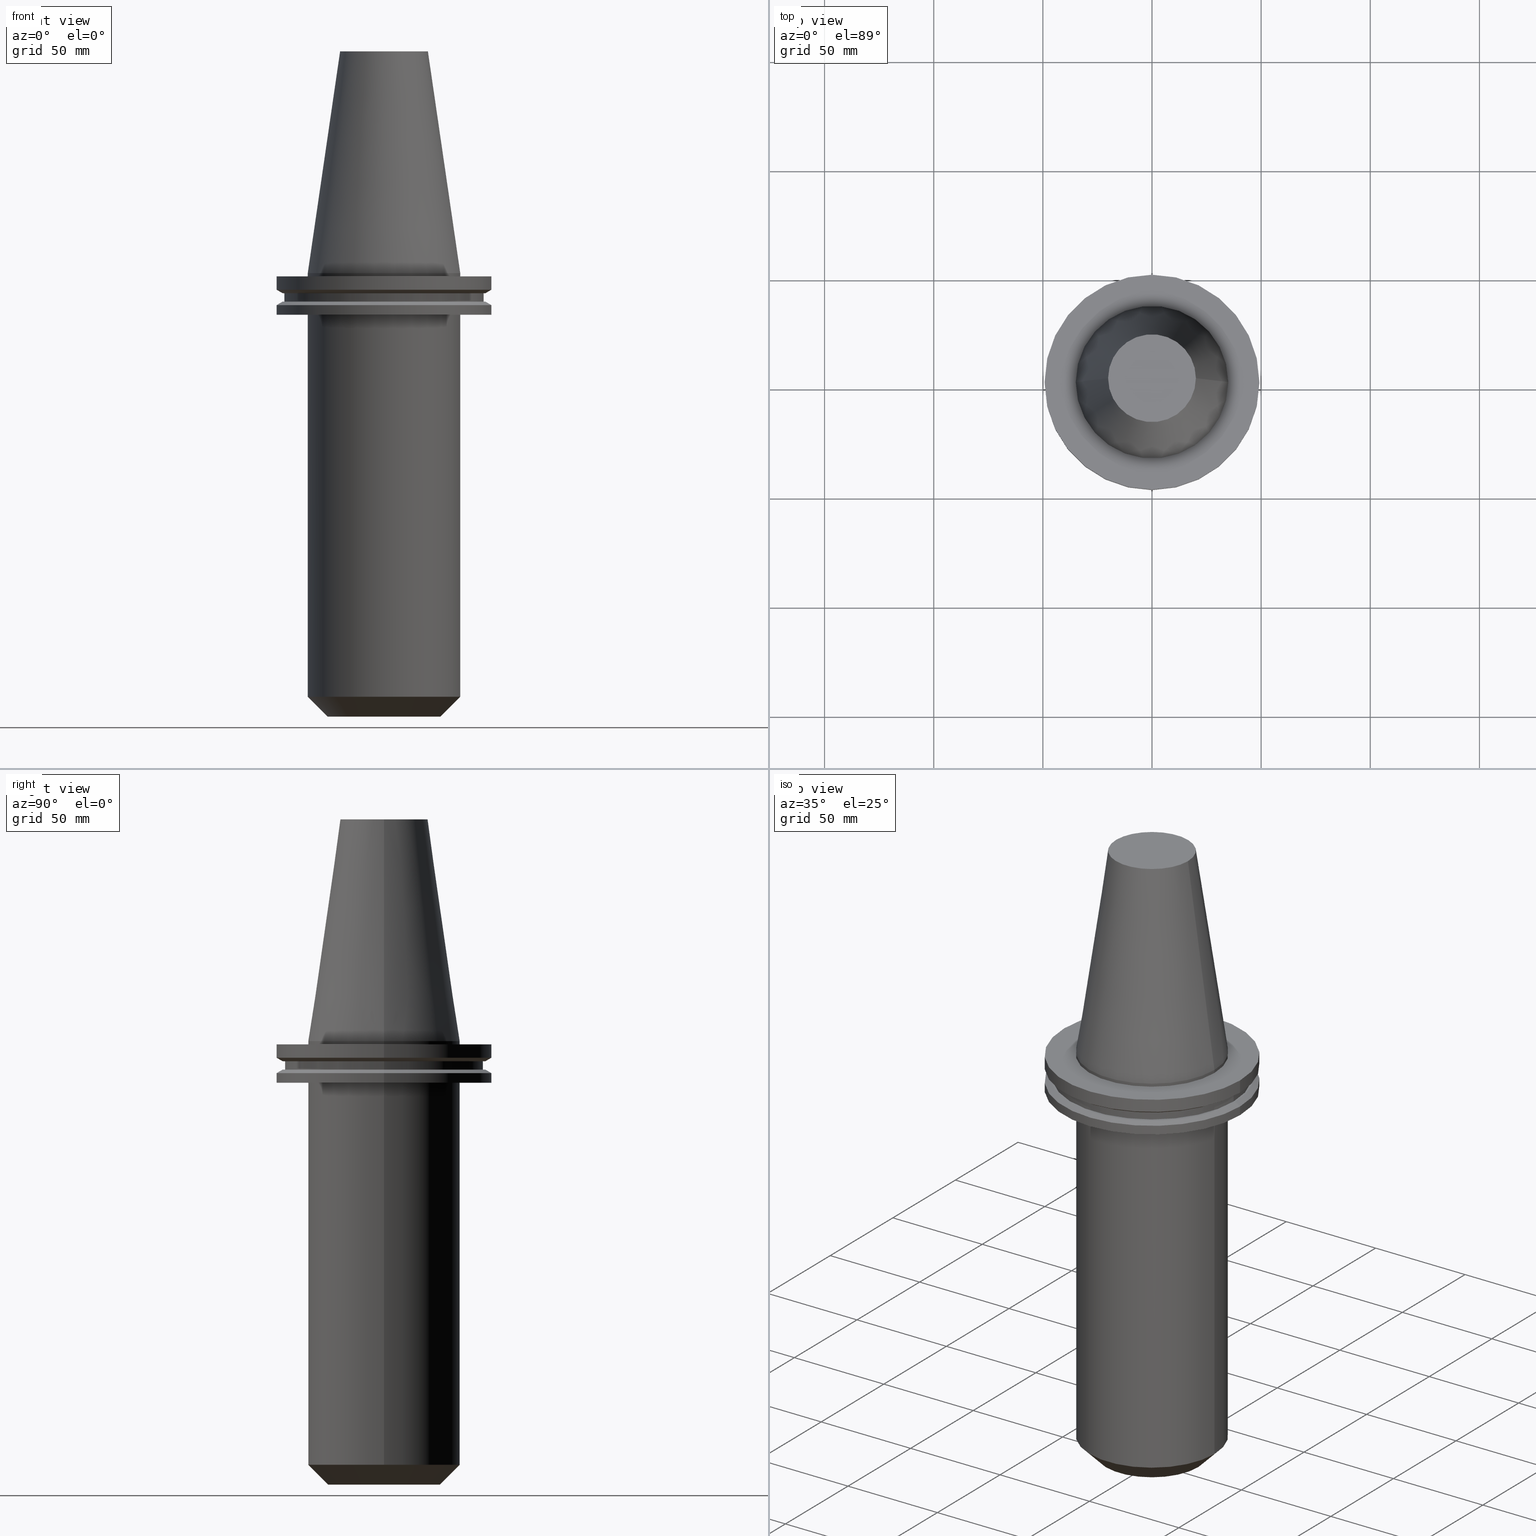
[diagram: canonical four-view strip — front | top / right | iso, engineering-drawing reading convention]
A machine part, canonical four-view strip (front | top / right | iso — engineering-drawing reading convention). The complete STEP part file that produces these views, byte-faithful:
ISO-10303-21;
HEADER;
FILE_DESCRIPTION (( 'STEP AP203' ),
    '1' );
FILE_NAME ('BCV50-EM1_500-8.stp',
    '2022-03-03T16:48:36',
    ( '' ),
    ( '' ),
    'SwSTEP 2.0',
    'SolidWorks 2021',
    '' );
FILE_SCHEMA (( 'CONFIG_CONTROL_DESIGN' ));
ENDSEC;

DATA;
#1 = DIRECTION ( 'NONE',  ( -0.000000000000000000, -0.000000000000000000, 1.000000000000000000 ) ) ;
#2 = PLANE ( 'NONE',  #761 ) ;
#3 = DIRECTION ( 'NONE',  ( 1.000000000000000000, 0.000000000000000000, 0.000000000000000000 ) ) ;
#4 = ORIENTED_EDGE ( 'NONE', *, *, #231, .T. ) ;
#5 = EDGE_CURVE ( 'NONE', #52, #735, #482, .T. ) ;
#6 = CARTESIAN_POINT ( 'NONE',  ( 0.000000000000000000, 0.000000000000000000, -19.04999999999999716 ) ) ;
#7 = CARTESIAN_POINT ( 'NONE',  ( 0.000000000000000000, 0.000000000000000000, 101.5999999999999943 ) ) ;
#8 = DIRECTION ( 'NONE',  ( -0.000000000000000000, -0.000000000000000000, 1.000000000000000000 ) ) ;
#9 = AXIS2_PLACEMENT_3D ( 'NONE', #703, #89, #413 ) ;
#10 = DIRECTION ( 'NONE',  ( -0.000000000000000000, -0.000000000000000000, 1.000000000000000000 ) ) ;
#11 = EDGE_CURVE ( 'NONE', #203, #165, #653, .T. ) ;
#12 = CARTESIAN_POINT ( 'NONE',  ( 46.43919780457007818, 5.857130358318725715E-15, -13.05499999999999794 ) ) ;
#13 = FACE_OUTER_BOUND ( 'NONE', #171, .T. ) ;
#14 = PRODUCT_RELATED_PRODUCT_CATEGORY ( 'detail', '', ( #643 ) ) ;
#15 = ORIENTED_EDGE ( 'NONE', *, *, #111, .T. ) ;
#16 = DIRECTION ( 'NONE',  ( -0.000000000000000000, -0.000000000000000000, 1.000000000000000000 ) ) ;
#17 = ORIENTED_EDGE ( 'NONE', *, *, #5, .F. ) ;
#18 = LINE ( 'NONE', #554, #314 ) ;
#19 = APPROVAL_PERSON_ORGANIZATION ( #275, #262, #741 ) ;
#20 = AXIS2_PLACEMENT_3D ( 'NONE', #491, #143, #495 ) ;
#21 = EDGE_CURVE ( 'NONE', #135, #344, #227, .T. ) ;
#22 = PERSON_AND_ORGANIZATION ( #120, #708 ) ;
#23 = AXIS2_PLACEMENT_3D ( 'NONE', #136, #508, #392 ) ;
#24 = EDGE_LOOP ( 'NONE', ( #470, #209, #439, #630 ) ) ;
#25 = DIRECTION ( 'NONE',  ( -0.000000000000000000, -0.000000000000000000, 1.000000000000000000 ) ) ;
#26 = APPROVAL_DATE_TIME ( #72, #186 ) ;
#27 = ADVANCED_FACE ( 'NONE', ( #529 ), #419, .T. ) ;
#28 = ORIENTED_EDGE ( 'NONE', *, *, #503, .F. ) ;
#29 = CARTESIAN_POINT ( 'NONE',  ( 0.000000000000000000, 0.000000000000000000, -13.05499999999999794 ) ) ;
#30 = ORIENTED_EDGE ( 'NONE', *, *, #342, .F. ) ;
#31 = LINE ( 'NONE', #281, #724 ) ;
#32 = VECTOR ( 'NONE', #230, 1000.000000000000000 ) ;
#33 = VECTOR ( 'NONE', #35, 1000.000000000000000 ) ;
#34 = ORIENTED_EDGE ( 'NONE', *, *, #283, .F. ) ;
#35 = DIRECTION ( 'NONE',  ( -0.000000000000000000, -0.000000000000000000, 1.000000000000000000 ) ) ;
#36 = FACE_OUTER_BOUND ( 'NONE', #24, .T. ) ;
#37 = ORIENTED_EDGE ( 'NONE', *, *, #590, .T. ) ;
#38 = DIRECTION ( 'NONE',  ( -0.000000000000000000, -0.000000000000000000, 1.000000000000000000 ) ) ;
#39 = APPLICATION_CONTEXT ( 'configuration controlled 3d designs of mechanical parts and assemblies' ) ;
#40 = ORIENTED_EDGE ( 'NONE', *, *, #635, .T. ) ;
#41 = DIRECTION ( 'NONE',  ( 1.000000000000000000, 0.000000000000000000, 0.000000000000000000 ) ) ;
#42 = ADVANCED_FACE ( 'NONE', ( #54, #536 ), #2, .F. ) ;
#43 = CIRCLE ( 'NONE', #695, 34.92499999999999005 ) ;
#44 = VERTEX_POINT ( 'NONE', #639 ) ;
#45 = AXIS2_PLACEMENT_3D ( 'NONE', #298, #106, #567 ) ;
#46 = CC_DESIGN_PERSON_AND_ORGANIZATION_ASSIGNMENT ( #22, #618, ( #662 ) ) ;
#47 = CARTESIAN_POINT ( 'NONE',  ( 49.21499999999999631, 0.000000000000000000, 101.5999999999999943 ) ) ;
#48 = ORIENTED_EDGE ( 'NONE', *, *, #551, .F. ) ;
#49 = DIRECTION ( 'NONE',  ( -0.000000000000000000, -0.000000000000000000, 1.000000000000000000 ) ) ;
#50 = ORIENTED_EDGE ( 'NONE', *, *, #513, .T. ) ;
#51 = CARTESIAN_POINT ( 'NONE',  ( 0.000000000000000000, 0.000000000000000000, -203.1999999999999886 ) ) ;
#52 = VERTEX_POINT ( 'NONE', #312 ) ;
#53 = DIRECTION ( 'NONE',  ( -0.000000000000000000, -0.000000000000000000, 1.000000000000000000 ) ) ;
#54 = FACE_OUTER_BOUND ( 'NONE', #448, .T. ) ;
#55 = AXIS2_PLACEMENT_3D ( 'NONE', #295, #172, #3 ) ;
#56 = DIRECTION ( 'NONE',  ( 1.000000000000000000, 0.000000000000000000, 0.000000000000000000 ) ) ;
#57 = LOCAL_TIME ( 10, 48, 36.00000000000000000, #91 ) ;
#58 = EDGE_LOOP ( 'NONE', ( #775, #88 ) ) ;
#59 = CARTESIAN_POINT ( 'NONE',  ( 34.92499999999999005, 0.000000000000000000, 101.5999999999999943 ) ) ;
#60 = DIRECTION ( 'NONE',  ( 1.000000000000000000, 0.000000000000000000, 0.000000000000000000 ) ) ;
#61 = DIRECTION ( 'NONE',  ( 0.000000000000000000, -0.000000000000000000, 1.000000000000000000 ) ) ;
#62 = CARTESIAN_POINT ( 'NONE',  ( 0.000000000000000000, 0.000000000000000000, -19.04999999999999716 ) ) ;
#63 = ADVANCED_FACE ( 'NONE', ( #433 ), #261, .F. ) ;
#64 = PLANE ( 'NONE',  #115 ) ;
#65 = CIRCLE ( 'NONE', #509, 19.04999999999999716 ) ;
#66 = CIRCLE ( 'NONE', #365, 49.21499999999999631 ) ;
#67 = DIRECTION ( 'NONE',  ( 1.000000000000000000, 0.000000000000000000, 0.000000000000000000 ) ) ;
#68 = VERTEX_POINT ( 'NONE', #744 ) ;
#69 = CARTESIAN_POINT ( 'NONE',  ( 0.000000000000000000, 0.000000000000000000, -9.204999999999991189 ) ) ;
#70 = VERTEX_POINT ( 'NONE', #85 ) ;
#71 = CARTESIAN_POINT ( 'NONE',  ( 0.000000000000000000, 49.21499999999998920, -19.04999999999999716 ) ) ;
#72 = DATE_AND_TIME ( #683, #734 ) ;
#73 = EDGE_LOOP ( 'NONE', ( #30, #533, #646, #192 ) ) ;
#74 = CARTESIAN_POINT ( 'NONE',  ( 0.000000000000000000, 0.000000000000000000, -1.499999999999987566 ) ) ;
#75 = CC_DESIGN_DATE_AND_TIME_ASSIGNMENT ( #616, #271, ( #467 ) ) ;
#76 = AXIS2_PLACEMENT_3D ( 'NONE', #726, #430, #668 ) ;
#77 = DIRECTION ( 'NONE',  ( 1.000000000000000000, 0.000000000000000000, 0.000000000000000000 ) ) ;
#78 = PERSON_AND_ORGANIZATION_ROLE ( 'design_owner' ) ;
#79 = AXIS2_PLACEMENT_3D ( 'NONE', #541, #255, #429 ) ;
#80 = VERTEX_POINT ( 'NONE', #149 ) ;
#81 = LINE ( 'NONE', #617, #194 ) ;
#82 = DATE_AND_TIME ( #568, #759 ) ;
#83 = EDGE_LOOP ( 'NONE', ( #579, #771 ) ) ;
#84 = DIRECTION ( 'NONE',  ( 1.000000000000000000, 0.000000000000000000, 0.000000000000000000 ) ) ;
#85 = CARTESIAN_POINT ( 'NONE',  ( 49.21499999999998920, 0.000000000000000000, -19.04999999999999716 ) ) ;
#86 = DATE_TIME_ROLE ( 'classification_date' ) ;
#87 = EDGE_CURVE ( 'NONE', #538, #479, #552, .T. ) ;
#88 = ORIENTED_EDGE ( 'NONE', *, *, #629, .F. ) ;
#89 = DIRECTION ( 'NONE',  ( -0.000000000000000000, -0.000000000000000000, 1.000000000000000000 ) ) ;
#90 = DIRECTION ( 'NONE',  ( -0.000000000000000000, -0.000000000000000000, 1.000000000000000000 ) ) ;
#91 = COORDINATED_UNIVERSAL_TIME_OFFSET ( 6, 0, .BEHIND. ) ;
#92 = AXIS2_PLACEMENT_3D ( 'NONE', #588, #459, #41 ) ;
#93 = CONICAL_SURFACE ( 'NONE', #266, 46.43919780457007818, 1.047197551196575205 ) ;
#94 = EDGE_LOOP ( 'NONE', ( #404, #711 ) ) ;
#95 = CARTESIAN_POINT ( 'NONE',  ( 45.64500000000000313, 0.000000000000000000, 101.5999999999999943 ) ) ;
#96 = ORIENTED_EDGE ( 'NONE', *, *, #565, .F. ) ;
#97 = ADVANCED_FACE ( 'NONE', ( #211, #401 ), #454, .F. ) ;
#98 = VERTEX_POINT ( 'NONE', #291 ) ;
#99 = CARTESIAN_POINT ( 'NONE',  ( 25.82499999999998153, 0.000000000000000000, -203.1999999999999886 ) ) ;
#100 = ADVANCED_FACE ( 'NONE', ( #520 ), #632, .T. ) ;
#101 = DIRECTION ( 'NONE',  ( 1.000000000000000000, 0.000000000000000000, 0.000000000000000000 ) ) ;
#102 = AXIS2_PLACEMENT_3D ( 'NONE', #694, #38, #346 ) ;
#103 = ORIENTED_EDGE ( 'NONE', *, *, #605, .T. ) ;
#104 = CIRCLE ( 'NONE', #557, 25.82499999999998153 ) ;
#105 = DIRECTION ( 'NONE',  ( 1.000000000000000000, 0.000000000000000000, 0.000000000000000000 ) ) ;
#106 = DIRECTION ( 'NONE',  ( -0.000000000000000000, -0.000000000000000000, 1.000000000000000000 ) ) ;
#107 = DIRECTION ( 'NONE',  ( -0.000000000000000000, -0.000000000000000000, 1.000000000000000000 ) ) ;
#108 = CARTESIAN_POINT ( 'NONE',  ( -49.21499999999998920, 6.027099222003697037E-15, -19.04999999999999716 ) ) ;
#109 = ORIENTED_EDGE ( 'NONE', *, *, #217, .T. ) ;
#110 = DIRECTION ( 'NONE',  ( -0.000000000000000000, -0.000000000000000000, 1.000000000000000000 ) ) ;
#111 = EDGE_CURVE ( 'NONE', #735, #52, #43, .T. ) ;
#112 = DIRECTION ( 'NONE',  ( 0.8660254037844273833, 0.000000000000000000, 0.5000000000000195399 ) ) ;
#113 = CARTESIAN_POINT ( 'NONE',  ( 49.21499999999998920, 6.027099222003697037E-15, -14.65761014474876944 ) ) ;
#114 = ORIENTED_EDGE ( 'NONE', *, *, #246, .T. ) ;
#115 = AXIS2_PLACEMENT_3D ( 'NONE', #315, #681, #254 ) ;
#116 = CARTESIAN_POINT ( 'NONE',  ( 0.000000000000000000, 0.000000000000000000, -35.04999999999999716 ) ) ;
#117 = CC_DESIGN_APPROVAL ( #262, ( #599 ) ) ;
#118 = AXIS2_PLACEMENT_3D ( 'NONE', #580, #691, #338 ) ;
#119 = CARTESIAN_POINT ( 'NONE',  ( -34.92499999999999005, 0.000000000000000000, 0.000000000000000000 ) ) ;
#120 = PERSON ( 'UNSPECIFIED', 'UNSPECIFIED', 'UNSPECIFIED', ('UNSPECIFIED'), ('UNSPECIFIED'), ('UNSPECIFIED') ) ;
#121 = CARTESIAN_POINT ( 'NONE',  ( -34.92499999999999005, 4.277078946022130098E-15, -1.499999999999987566 ) ) ;
#122 = EDGE_CURVE ( 'NONE', #142, #98, #353, .T. ) ;
#123 = DIRECTION ( 'NONE',  ( -0.000000000000000000, -0.000000000000000000, 1.000000000000000000 ) ) ;
#124 = FACE_BOUND ( 'NONE', #730, .T. ) ;
#125 = ORIENTED_EDGE ( 'NONE', *, *, #276, .T. ) ;
#126 = CARTESIAN_POINT ( 'NONE',  ( 34.92499999999999005, 0.000000000000000000, -1.499999999999987566 ) ) ;
#127 = AXIS2_PLACEMENT_3D ( 'NONE', #6, #537, #596 ) ;
#128 = AXIS2_PLACEMENT_3D ( 'NONE', #189, #676, #563 ) ;
#129 = CC_DESIGN_APPROVAL ( #445, ( #662 ) ) ;
#130 = DIRECTION ( 'NONE',  ( -0.8660254037844273833, 1.060575238724893110E-16, 0.5000000000000195399 ) ) ;
#131 = ADVANCED_FACE ( 'NONE', ( #224 ), #524, .F. ) ;
#132 = VERTEX_POINT ( 'NONE', #215 ) ;
#133 = FACE_BOUND ( 'NONE', #94, .T. ) ;
#134 = EDGE_CURVE ( 'NONE', #514, #165, #723, .T. ) ;
#135 = VERTEX_POINT ( 'NONE', #396 ) ;
#136 = CARTESIAN_POINT ( 'NONE',  ( 0.000000000000000000, 0.000000000000000000, 101.5999999999999943 ) ) ;
#137 = PERSON_AND_ORGANIZATION ( #120, #708 ) ;
#138 = ORIENTED_EDGE ( 'NONE', *, *, #373, .F. ) ;
#139 = CARTESIAN_POINT ( 'NONE',  ( 0.000000000000000000, 0.000000000000000000, -35.04999999999999716 ) ) ;
#140 = AXIS2_PLACEMENT_3D ( 'NONE', #377, #386, #193 ) ;
#141 = VECTOR ( 'NONE', #725, 1000.000000000000000 ) ;
#142 = VERTEX_POINT ( 'NONE', #760 ) ;
#143 = DIRECTION ( 'NONE',  ( -0.000000000000000000, -0.000000000000000000, 1.000000000000000000 ) ) ;
#144 = ADVANCED_FACE ( 'NONE', ( #517 ), #619, .T. ) ;
#145 = APPROVAL_ROLE ( '' ) ;
#146 = EDGE_LOOP ( 'NONE', ( #257, #4 ) ) ;
#147 = LINE ( 'NONE', #469, #33 ) ;
#148 = CARTESIAN_POINT ( 'NONE',  ( 0.000000000000000000, 0.000000000000000000, -14.65761014474876944 ) ) ;
#149 = CARTESIAN_POINT ( 'NONE',  ( -46.43919780457007818, 0.000000000000000000, -13.05499999999999794 ) ) ;
#150 = ORIENTED_EDGE ( 'NONE', *, *, #555, .F. ) ;
#151 = DIRECTION ( 'NONE',  ( 1.000000000000000000, 0.000000000000000000, 0.000000000000000000 ) ) ;
#152 = CARTESIAN_POINT ( 'NONE',  ( 0.000000000000000000, 0.000000000000000000, 101.5999999999999943 ) ) ;
#153 = AXIS2_PLACEMENT_3D ( 'NONE', #592, #8, #415 ) ;
#154 = ADVANCED_FACE ( 'NONE', ( #462 ), #573, .T. ) ;
#155 = ORIENTED_EDGE ( 'NONE', *, *, #21, .T. ) ;
#156 = DIRECTION ( 'NONE',  ( 1.000000000000000000, 0.000000000000000000, 0.000000000000000000 ) ) ;
#157 = ORIENTED_EDGE ( 'NONE', *, *, #205, .T. ) ;
#158 = CC_DESIGN_PERSON_AND_ORGANIZATION_ASSIGNMENT ( #384, #268, ( #599 ) ) ;
#159 = DIRECTION ( 'NONE',  ( 0.000000000000000000, 0.000000000000000000, -1.000000000000000000 ) ) ;
#160 = ORIENTED_EDGE ( 'NONE', *, *, #551, .T. ) ;
#161 = CARTESIAN_POINT ( 'NONE',  ( 46.43919780457007818, 0.000000000000000000, -9.204999999999991189 ) ) ;
#162 = CARTESIAN_POINT ( 'NONE',  ( -34.92499999999999005, 0.000000000000000000, 0.000000000000000000 ) ) ;
#163 = CIRCLE ( 'NONE', #127, 34.92499999999999716 ) ;
#164 = CIRCLE ( 'NONE', #758, 49.21499999999999631 ) ;
#165 = VERTEX_POINT ( 'NONE', #405 ) ;
#166 = CC_DESIGN_SECURITY_CLASSIFICATION ( #599, ( #662 ) ) ;
#167 = DIRECTION ( 'NONE',  ( -0.8660254037844169472, 0.000000000000000000, -0.5000000000000375255 ) ) ;
#168 = EDGE_LOOP ( 'NONE', ( #269, #680 ) ) ;
#169 = ADVANCED_FACE ( 'NONE', ( #36 ), #411, .T. ) ;
#170 = CARTESIAN_POINT ( 'NONE',  ( -49.21499999999999631, 6.027099222003697826E-15, -1.499999999999987566 ) ) ;
#171 = EDGE_LOOP ( 'NONE', ( #516, #570, #17, #465 ) ) ;
#172 = DIRECTION ( 'NONE',  ( -0.000000000000000000, -0.000000000000000000, 1.000000000000000000 ) ) ;
#173 = ORIENTED_EDGE ( 'NONE', *, *, #605, .F. ) ;
#174 = FACE_OUTER_BOUND ( 'NONE', #655, .T. ) ;
#175 = DIRECTION ( 'NONE',  ( 1.000000000000000000, 0.000000000000000000, 0.000000000000000000 ) ) ;
#176 = PRODUCT_DEFINITION_SHAPE ( 'NONE', 'NONE',  #467 ) ;
#177 = DIRECTION ( 'NONE',  ( 1.000000000000000000, 0.000000000000000000, 0.000000000000000000 ) ) ;
#178 = CARTESIAN_POINT ( 'NONE',  ( 0.000000000000000000, 0.000000000000000000, -203.1999999999999886 ) ) ;
#179 = VECTOR ( 'NONE', #764, 1000.000000000000000 ) ;
#180 = EDGE_CURVE ( 'NONE', #289, #132, #644, .T. ) ;
#181 = VECTOR ( 'NONE', #432, 1000.000000000000000 ) ;
#182 = LINE ( 'NONE', #366, #746 ) ;
#183 = AXIS2_PLACEMENT_3D ( 'NONE', #286, #657, #359 ) ;
#184 = CARTESIAN_POINT ( 'NONE',  ( -34.92499999999999716, 4.277078946022130887E-15, 101.5999999999999943 ) ) ;
#185 = CARTESIAN_POINT ( 'NONE',  ( 34.92499999999999716, 0.000000000000000000, 101.5999999999999943 ) ) ;
#186 = APPROVAL ( #216, 'UNSPECIFIED' ) ;
#187 = LINE ( 'NONE', #59, #747 ) ;
#188 = ORIENTED_EDGE ( 'NONE', *, *, #738, .T. ) ;
#189 = CARTESIAN_POINT ( 'NONE',  ( 0.000000000000000000, 0.000000000000000000, 101.5999999999999943 ) ) ;
#190 = DIRECTION ( 'NONE',  ( -0.000000000000000000, -0.000000000000000000, 1.000000000000000000 ) ) ;
#191 = AXIS2_PLACEMENT_3D ( 'NONE', #737, #330, #207 ) ;
#192 = ORIENTED_EDGE ( 'NONE', *, *, #682, .F. ) ;
#193 = DIRECTION ( 'NONE',  ( 1.000000000000000000, 0.000000000000000000, 0.000000000000000000 ) ) ;
#194 = VECTOR ( 'NONE', #319, 1000.000000000000000 ) ;
#195 = AXIS2_PLACEMENT_3D ( 'NONE', #594, #53, #302 ) ;
#196 = DIRECTION ( 'NONE',  ( -0.000000000000000000, -0.000000000000000000, 1.000000000000000000 ) ) ;
#197 = ORIENTED_EDGE ( 'NONE', *, *, #331, .T. ) ;
#198 = CYLINDRICAL_SURFACE ( 'NONE', #23, 34.92499999999999005 ) ;
#199 = MECHANICAL_CONTEXT ( 'NONE', #347, 'mechanical' ) ;
#200 = VERTEX_POINT ( 'NONE', #701 ) ;
#201 = DIRECTION ( 'NONE',  ( 1.000000000000000000, 0.000000000000000000, 0.000000000000000000 ) ) ;
#202 = MANIFOLD_SOLID_BREP ( 'EM', #578 ) ;
#203 = VERTEX_POINT ( 'NONE', #161 ) ;
#204 = CARTESIAN_POINT ( 'NONE',  ( 0.000000000000000000, 0.000000000000000000, -203.1999999999999886 ) ) ;
#205 = EDGE_CURVE ( 'NONE', #507, #200, #461, .T. ) ;
#206 = CIRCLE ( 'NONE', #279, 46.43919780457007818 ) ;
#207 = DIRECTION ( 'NONE',  ( 1.000000000000000000, 0.000000000000000000, 0.000000000000000000 ) ) ;
#208 = AXIS2_PLACEMENT_3D ( 'NONE', #7, #310, #606 ) ;
#209 = ORIENTED_EDGE ( 'NONE', *, *, #702, .T. ) ;
#210 = DIRECTION ( 'NONE',  ( 1.000000000000000000, 0.000000000000000000, 0.000000000000000000 ) ) ;
#211 = FACE_BOUND ( 'NONE', #394, .T. ) ;
#212 = PERSON_AND_ORGANIZATION_ROLE ( 'design_supplier' ) ;
#213 = EDGE_LOOP ( 'NONE', ( #34, #138, #582, #155 ) ) ;
#214 = CARTESIAN_POINT ( 'NONE',  ( 0.000000000000000000, 0.000000000000000000, -1.499999999999987566 ) ) ;
#215 = CARTESIAN_POINT ( 'NONE',  ( 34.92500000000000426, 0.000000000000000000, -194.0999999999999943 ) ) ;
#216 = APPROVAL_STATUS ( 'not_yet_approved' ) ;
#217 = EDGE_CURVE ( 'NONE', #320, #70, #313, .T. ) ;
#218 = VERTEX_POINT ( 'NONE', #604 ) ;
#219 = CARTESIAN_POINT ( 'NONE',  ( 0.000000000000000000, 0.000000000000000000, 0.000000000000000000 ) ) ;
#220 = CIRCLE ( 'NONE', #450, 46.43919780457007818 ) ;
#221 = AXIS2_PLACEMENT_3D ( 'NONE', #71, #449, #321 ) ;
#222 = CC_DESIGN_PERSON_AND_ORGANIZATION_ASSIGNMENT ( #380, #78, ( #643 ) ) ;
#223 = ORIENTED_EDGE ( 'NONE', *, *, #542, .T. ) ;
#224 = FACE_OUTER_BOUND ( 'NONE', #477, .T. ) ;
#225 = ORIENTED_EDGE ( 'NONE', *, *, #272, .T. ) ;
#226 = DIRECTION ( 'NONE',  ( -0.000000000000000000, -0.000000000000000000, 1.000000000000000000 ) ) ;
#227 = CIRCLE ( 'NONE', #244, 49.21499999999998920 ) ;
#228 = LINE ( 'NONE', #47, #685 ) ;
#229 = ORIENTED_EDGE ( 'NONE', *, *, #753, .T. ) ;
#230 = DIRECTION ( 'NONE',  ( -0.7071067811865486830, 8.659560562354947649E-17, 0.7071067811865464625 ) ) ;
#231 = EDGE_CURVE ( 'NONE', #378, #80, #400, .T. ) ;
#232 = ORIENTED_EDGE ( 'NONE', *, *, #134, .T. ) ;
#233 = DIRECTION ( 'NONE',  ( 1.000000000000000000, 0.000000000000000000, 0.000000000000000000 ) ) ;
#234 = CIRCLE ( 'NONE', #647, 25.82499999999998153 ) ;
#235 = CIRCLE ( 'NONE', #572, 45.64500000000000313 ) ;
#236 = EDGE_LOOP ( 'NONE', ( #114, #188, #28, #526 ) ) ;
#237 = LOCAL_TIME ( 10, 48, 36.00000000000000000, #745 ) ;
#238 = CARTESIAN_POINT ( 'NONE',  ( 0.000000000000000000, 0.000000000000000000, -9.204999999999991189 ) ) ;
#239 = VERTEX_POINT ( 'NONE', #121 ) ;
#240 = DIRECTION ( 'NONE',  ( -0.000000000000000000, -0.000000000000000000, 1.000000000000000000 ) ) ;
#241 = DIRECTION ( 'NONE',  ( 1.000000000000000000, 0.000000000000000000, 0.000000000000000000 ) ) ;
#242 = CARTESIAN_POINT ( 'NONE',  ( 0.000000000000000000, 0.000000000000000000, -203.1999999999999886 ) ) ;
#243 = ORIENTED_EDGE ( 'NONE', *, *, #513, .F. ) ;
#244 = AXIS2_PLACEMENT_3D ( 'NONE', #352, #107, #241 ) ;
#245 = APPLICATION_PROTOCOL_DEFINITION ( 'international standard', 'config_control_design', 1994, #347 ) ;
#246 = EDGE_CURVE ( 'NONE', #203, #68, #220, .T. ) ;
#247 = CARTESIAN_POINT ( 'NONE',  ( 0.000000000000000000, 0.000000000000000000, -203.1999999999999886 ) ) ;
#248 = DIRECTION ( 'NONE',  ( -0.000000000000000000, -0.000000000000000000, 1.000000000000000000 ) ) ;
#249 = ADVANCED_FACE ( 'NONE', ( #424, #124 ), #356, .F. ) ;
#250 = CIRCLE ( 'NONE', #648, 34.92499999999999005 ) ;
#251 = CONICAL_SURFACE ( 'NONE', #350, 25.82499999999998153, 0.7853981633974498333 ) ;
#252 = FACE_OUTER_BOUND ( 'NONE', #362, .T. ) ;
#253 = DIRECTION ( 'NONE',  ( 1.000000000000000000, 0.000000000000000000, 0.000000000000000000 ) ) ;
#254 = DIRECTION ( 'NONE',  ( -1.000000000000000000, 0.000000000000000000, -0.000000000000000000 ) ) ;
#255 = DIRECTION ( 'NONE',  ( 0.000000000000000000, 0.000000000000000000, -1.000000000000000000 ) ) ;
#256 = DIRECTION ( 'NONE',  ( 0.000000000000000000, -0.000000000000000000, 1.000000000000000000 ) ) ;
#257 = ORIENTED_EDGE ( 'NONE', *, *, #373, .T. ) ;
#258 = CYLINDRICAL_SURFACE ( 'NONE', #20, 45.64500000000000313 ) ;
#259 = EDGE_CURVE ( 'NONE', #280, #263, #722, .T. ) ;
#260 = LINE ( 'NONE', #667, #620 ) ;
#261 = PLANE ( 'NONE',  #623 ) ;
#262 = APPROVAL ( #334, 'UNSPECIFIED' ) ;
#263 = VERTEX_POINT ( 'NONE', #654 ) ;
#264 = DIRECTION ( 'NONE',  ( -0.000000000000000000, -0.000000000000000000, 1.000000000000000000 ) ) ;
#265 = AXIS2_PLACEMENT_3D ( 'NONE', #152, #698, #156 ) ;
#266 = AXIS2_PLACEMENT_3D ( 'NONE', #589, #240, #586 ) ;
#267 = APPROVAL_PERSON_ORGANIZATION ( #137, #186, #444 ) ;
#268 = PERSON_AND_ORGANIZATION_ROLE ( 'classification_officer' ) ;
#269 = ORIENTED_EDGE ( 'NONE', *, *, #246, .F. ) ;
#270 = CARTESIAN_POINT ( 'NONE',  ( 0.000000000000000000, 0.000000000000000000, -13.05499999999999794 ) ) ;
#271 = DATE_TIME_ROLE ( 'creation_date' ) ;
#272 = EDGE_CURVE ( 'NONE', #132, #675, #540, .T. ) ;
#273 = EDGE_LOOP ( 'NONE', ( #284, #704, #626, #597 ) ) ;
#274 = FACE_OUTER_BOUND ( 'NONE', #558, .T. ) ;
#275 = PERSON_AND_ORGANIZATION ( #120, #708 ) ;
#276 = EDGE_CURVE ( 'NONE', #280, #289, #234, .T. ) ;
#277 = ORIENTED_EDGE ( 'NONE', *, *, #272, .F. ) ;
#278 = FACE_OUTER_BOUND ( 'NONE', #613, .T. ) ;
#279 = AXIS2_PLACEMENT_3D ( 'NONE', #69, #687, #435 ) ;
#280 = VERTEX_POINT ( 'NONE', #712 ) ;
#281 = CARTESIAN_POINT ( 'NONE',  ( -49.21499999999998920, 6.027099222003697037E-15, 101.5999999999999943 ) ) ;
#282 = DIRECTION ( 'NONE',  ( -1.000000000000000000, 0.000000000000000000, -0.000000000000000000 ) ) ;
#283 = EDGE_CURVE ( 'NONE', #378, #344, #478, .T. ) ;
#284 = ORIENTED_EDGE ( 'NONE', *, *, #492, .T. ) ;
#285 = EDGE_CURVE ( 'NONE', #675, #719, #705, .T. ) ;
#286 = CARTESIAN_POINT ( 'NONE',  ( 0.000000000000000000, 0.000000000000000000, 101.5999999999999943 ) ) ;
#287 = DIRECTION ( 'NONE',  ( 0.000000000000000000, 0.000000000000000000, -1.000000000000000000 ) ) ;
#288 = VECTOR ( 'NONE', #371, 1000.000000000000000 ) ;
#289 = VERTEX_POINT ( 'NONE', #485 ) ;
#290 = VECTOR ( 'NONE', #226, 1000.000000000000000 ) ;
#291 = CARTESIAN_POINT ( 'NONE',  ( -45.64500000000000313, 5.589900314708094957E-15, -9.204999999999991189 ) ) ;
#292 = CARTESIAN_POINT ( 'NONE',  ( 0.000000000000000000, 0.000000000000000000, 0.000000000000000000 ) ) ;
#293 = EDGE_CURVE ( 'NONE', #44, #739, #65, .T. ) ;
#294 = EDGE_LOOP ( 'NONE', ( #398, #414 ) ) ;
#295 = CARTESIAN_POINT ( 'NONE',  ( 0.000000000000000000, 0.000000000000000000, -19.04999999999999716 ) ) ;
#296 = EDGE_LOOP ( 'NONE', ( #103, #754, #713, #277 ) ) ;
#297 = CC_DESIGN_DATE_AND_TIME_ASSIGNMENT ( #506, #86, ( #599 ) ) ;
#298 = CARTESIAN_POINT ( 'NONE',  ( 0.000000000000000000, 0.000000000000000000, -14.65761014474876944 ) ) ;
#299 = ORIENTED_EDGE ( 'NONE', *, *, #293, .F. ) ;
#300 = CARTESIAN_POINT ( 'NONE',  ( 0.000000000000000000, 46.43919780457007818, -9.204999999999998295 ) ) ;
#301 = ORIENTED_EDGE ( 'NONE', *, *, #702, .F. ) ;
#302 = DIRECTION ( 'NONE',  ( 1.000000000000000000, 0.000000000000000000, 0.000000000000000000 ) ) ;
#303 = AXIS2_PLACEMENT_3D ( 'NONE', #528, #770, #233 ) ;
#304 = ORIENTED_EDGE ( 'NONE', *, *, #555, .T. ) ;
#305 = DIRECTION ( 'NONE',  ( -0.000000000000000000, -0.000000000000000000, 1.000000000000000000 ) ) ;
#306 = ORIENTED_EDGE ( 'NONE', *, *, #542, .F. ) ;
#307 = EDGE_CURVE ( 'NONE', #80, #135, #182, .T. ) ;
#308 = DIRECTION ( 'NONE',  ( -0.000000000000000000, -0.000000000000000000, 1.000000000000000000 ) ) ;
#309 = CC_DESIGN_PERSON_AND_ORGANIZATION_ASSIGNMENT ( #502, #212, ( #662 ) ) ;
#310 = DIRECTION ( 'NONE',  ( -0.000000000000000000, -0.000000000000000000, 1.000000000000000000 ) ) ;
#311 = CARTESIAN_POINT ( 'NONE',  ( 0.000000000000000000, 0.000000000000000000, -19.04999999999999716 ) ) ;
#312 = CARTESIAN_POINT ( 'NONE',  ( 34.92499999999999005, 4.277078946022130098E-15, 0.000000000000000000 ) ) ;
#313 = CIRCLE ( 'NONE', #55, 49.21499999999998920 ) ;
#314 = VECTOR ( 'NONE', #264, 1000.000000000000000 ) ;
#315 = CARTESIAN_POINT ( 'NONE',  ( 0.000000000000000000, 45.64500000000000313, -13.05499999999999794 ) ) ;
#316 = DIRECTION ( 'NONE',  ( 1.000000000000000000, 0.000000000000000000, 0.000000000000000000 ) ) ;
#317 = CARTESIAN_POINT ( 'NONE',  ( 0.000000000000000000, 34.92499999999999716, -35.04999999999999716 ) ) ;
#318 = EDGE_CURVE ( 'NONE', #719, #675, #163, .T. ) ;
#319 = DIRECTION ( 'NONE',  ( -0.000000000000000000, -0.000000000000000000, 1.000000000000000000 ) ) ;
#320 = VERTEX_POINT ( 'NONE', #108 ) ;
#321 = DIRECTION ( 'NONE',  ( 1.000000000000000000, 0.000000000000000000, 0.000000000000000000 ) ) ;
#322 = CALENDAR_DATE ( 2022, 3, 3 ) ;
#323 = LOCAL_TIME ( 10, 48, 36.00000000000000000, #628 ) ;
#324 = ORIENTED_EDGE ( 'NONE', *, *, #531, .T. ) ;
#325 = DIRECTION ( 'NONE',  ( 0.000000000000000000, 0.000000000000000000, -1.000000000000000000 ) ) ;
#326 = ADVANCED_FACE ( 'NONE', ( #428 ), #532, .T. ) ;
#327 = COORDINATED_UNIVERSAL_TIME_OFFSET ( 6, 0, .BEHIND. ) ;
#328 = EDGE_LOOP ( 'NONE', ( #229, #223, #243, #150 ) ) ;
#329 = FACE_OUTER_BOUND ( 'NONE', #434, .T. ) ;
#330 = DIRECTION ( 'NONE',  ( 0.000000000000000000, 0.000000000000000000, 1.000000000000000000 ) ) ;
#331 = EDGE_CURVE ( 'NONE', #98, #479, #348, .T. ) ;
#332 = ORIENTED_EDGE ( 'NONE', *, *, #122, .F. ) ;
#333 = CYLINDRICAL_SURFACE ( 'NONE', #339, 19.04999999999999716 ) ;
#334 = APPROVAL_STATUS ( 'not_yet_approved' ) ;
#335 = ORIENTED_EDGE ( 'NONE', *, *, #283, .T. ) ;
#336 = DIRECTION ( 'NONE',  ( 1.000000000000000000, 0.000000000000000000, 0.000000000000000000 ) ) ;
#337 = VECTOR ( 'NONE', #468, 1000.000000000000000 ) ;
#338 = DIRECTION ( 'NONE',  ( -1.000000000000000000, 0.000000000000000000, -0.000000000000000000 ) ) ;
#339 = AXIS2_PLACEMENT_3D ( 'NONE', #292, #631, #210 ) ;
#340 = DATE_AND_TIME ( #556, #57 ) ;
#341 = ORIENTED_EDGE ( 'NONE', *, *, #640, .T. ) ;
#342 = EDGE_CURVE ( 'NONE', #659, #510, #663, .T. ) ;
#343 = CARTESIAN_POINT ( 'NONE',  ( -45.64500000000000313, 5.589900314708094957E-15, 101.5999999999999943 ) ) ;
#344 = VERTEX_POINT ( 'NONE', #369 ) ;
#345 = EDGE_LOOP ( 'NONE', ( #743, #527, #173, #553 ) ) ;
#346 = DIRECTION ( 'NONE',  ( 1.000000000000000000, 0.000000000000000000, 0.000000000000000000 ) ) ;
#347 = APPLICATION_CONTEXT ( 'configuration controlled 3d designs of mechanical parts and assemblies' ) ;
#348 = CIRCLE ( 'NONE', #153, 45.64500000000000313 ) ;
#349 = ADVANCED_FACE ( 'NONE', ( #252 ), #490, .T. ) ;
#350 = AXIS2_PLACEMENT_3D ( 'NONE', #425, #368, #548 ) ;
#351 = CARTESIAN_POINT ( 'NONE',  ( 0.000000000000000000, 0.000000000000000000, 0.000000000000000000 ) ) ;
#352 = CARTESIAN_POINT ( 'NONE',  ( 0.000000000000000000, 0.000000000000000000, -14.65761014474876944 ) ) ;
#353 = LINE ( 'NONE', #343, #337 ) ;
#354 = CARTESIAN_POINT ( 'NONE',  ( -20.10819343178871321, 0.000000000000000000, 101.5999999999999801 ) ) ;
#355 = CARTESIAN_POINT ( 'NONE',  ( 46.43919780457007818, 0.000000000000000000, -9.204999999999991189 ) ) ;
#356 = PLANE ( 'NONE',  #569 ) ;
#357 = ORIENTED_EDGE ( 'NONE', *, *, #231, .F. ) ;
#358 = DIRECTION ( 'NONE',  ( 1.000000000000000000, 0.000000000000000000, 0.000000000000000000 ) ) ;
#359 = DIRECTION ( 'NONE',  ( 1.000000000000000000, 0.000000000000000000, 0.000000000000000000 ) ) ;
#360 = ADVANCED_FACE ( 'NONE', ( #768, #607 ), #64, .F. ) ;
#361 = DIRECTION ( 'NONE',  ( 1.000000000000000000, 0.000000000000000000, 0.000000000000000000 ) ) ;
#362 = EDGE_LOOP ( 'NONE', ( #332, #763, #686, #500 ) ) ;
#363 = FACE_OUTER_BOUND ( 'NONE', #213, .T. ) ;
#364 = AXIS2_PLACEMENT_3D ( 'NONE', #29, #550, #560 ) ;
#365 = AXIS2_PLACEMENT_3D ( 'NONE', #214, #693, #151 ) ;
#366 = CARTESIAN_POINT ( 'NONE',  ( -49.21499999999998920, 0.000000000000000000, -14.65761014474876944 ) ) ;
#367 = EDGE_CURVE ( 'NONE', #239, #735, #81, .T. ) ;
#368 = DIRECTION ( 'NONE',  ( -0.000000000000000000, -0.000000000000000000, 1.000000000000000000 ) ) ;
#369 = CARTESIAN_POINT ( 'NONE',  ( 49.21499999999998920, 0.000000000000000000, -14.65761014474876944 ) ) ;
#370 =( NAMED_UNIT ( * ) SI_UNIT ( $, .STERADIAN. ) SOLID_ANGLE_UNIT ( ) );
#371 = DIRECTION ( 'NONE',  ( -0.000000000000000000, -0.000000000000000000, 1.000000000000000000 ) ) ;
#372 = LINE ( 'NONE', #609, #610 ) ;
#373 = EDGE_CURVE ( 'NONE', #80, #378, #498, .T. ) ;
#374 = AXIS2_PLACEMENT_3D ( 'NONE', #410, #649, #105 ) ;
#375 = AXIS2_PLACEMENT_3D ( 'NONE', #547, #765, #395 ) ;
#376 = ORIENTED_EDGE ( 'NONE', *, *, #455, .F. ) ;
#377 = CARTESIAN_POINT ( 'NONE',  ( 0.000000000000000000, 0.000000000000000000, 101.5999999999999801 ) ) ;
#378 = VERTEX_POINT ( 'NONE', #12 ) ;
#379 = FACE_OUTER_BOUND ( 'NONE', #549, .T. ) ;
#380 = PERSON_AND_ORGANIZATION ( #120, #708 ) ;
#381 = ORIENTED_EDGE ( 'NONE', *, *, #715, .F. ) ;
#382 = CYLINDRICAL_SURFACE ( 'NONE', #128, 34.92499999999999716 ) ;
#383 = EDGE_CURVE ( 'NONE', #510, #659, #584, .T. ) ;
#384 = PERSON_AND_ORGANIZATION ( #120, #708 ) ;
#385 = ORIENTED_EDGE ( 'NONE', *, *, #205, .F. ) ;
#386 = DIRECTION ( 'NONE',  ( -0.000000000000000000, -0.000000000000000000, 1.000000000000000000 ) ) ;
#387 = CONICAL_SURFACE ( 'NONE', #731, 46.43919780457007818, 1.047197551196575205 ) ;
#388 = AXIS2_PLACEMENT_3D ( 'NONE', #505, #325, #671 ) ;
#389 = EDGE_CURVE ( 'NONE', #68, #203, #206, .T. ) ;
#390 = APPROVAL_DATE_TIME ( #82, #262 ) ;
#391 = ORIENTED_EDGE ( 'NONE', *, *, #762, .T. ) ;
#392 = DIRECTION ( 'NONE',  ( 1.000000000000000000, 0.000000000000000000, 0.000000000000000000 ) ) ;
#393 = APPLICATION_PROTOCOL_DEFINITION ( 'international standard', 'config_control_design', 1994, #39 ) ;
#394 = EDGE_LOOP ( 'NONE', ( #562, #406 ) ) ;
#395 = DIRECTION ( 'NONE',  ( 1.000000000000000000, 0.000000000000000000, 0.000000000000000000 ) ) ;
#396 = CARTESIAN_POINT ( 'NONE',  ( -49.21499999999998920, 6.027099222003697037E-15, -14.65761014474876944 ) ) ;
#397 = ADVANCED_FACE ( 'NONE', ( #379 ), #387, .T. ) ;
#398 = ORIENTED_EDGE ( 'NONE', *, *, #383, .T. ) ;
#399 = DIRECTION ( 'NONE',  ( -0.1443082272672999988, 0.000000000000000000, -0.9895327864921755756 ) ) ;
#400 = CIRCLE ( 'NONE', #437, 46.43919780457007818 ) ;
#401 = FACE_OUTER_BOUND ( 'NONE', #442, .T. ) ;
#402 = CIRCLE ( 'NONE', #45, 49.21499999999998920 ) ;
#403 = APPROVAL_PERSON_ORGANIZATION ( #456, #445, #145 ) ;
#404 = ORIENTED_EDGE ( 'NONE', *, *, #285, .T. ) ;
#405 = CARTESIAN_POINT ( 'NONE',  ( 49.21500000000000341, 0.000000000000000000, -7.602389855251287187 ) ) ;
#406 = ORIENTED_EDGE ( 'NONE', *, *, #635, .F. ) ;
#407 = DIRECTION ( 'NONE',  ( -1.000000000000000000, 0.000000000000000000, 0.000000000000000000 ) ) ;
#408 = ADVANCED_FACE ( 'NONE', ( #622 ), #258, .T. ) ;
#409 = ORIENTED_EDGE ( 'NONE', *, *, #496, .F. ) ;
#410 = CARTESIAN_POINT ( 'NONE',  ( 0.000000000000000000, 0.000000000000000000, 101.5999999999999801 ) ) ;
#411 = CONICAL_SURFACE ( 'NONE', #684, 34.92499999999999005, 0.1448138465474119452 ) ;
#412 = CIRCLE ( 'NONE', #438, 34.92500000000000426 ) ;
#413 = DIRECTION ( 'NONE',  ( 1.000000000000000000, 0.000000000000000000, 0.000000000000000000 ) ) ;
#414 = ORIENTED_EDGE ( 'NONE', *, *, #342, .T. ) ;
#415 = DIRECTION ( 'NONE',  ( 1.000000000000000000, 0.000000000000000000, 0.000000000000000000 ) ) ;
#416 = ORIENTED_EDGE ( 'NONE', *, *, #389, .T. ) ;
#417 = DIRECTION ( 'NONE',  ( -0.000000000000000000, -0.000000000000000000, 1.000000000000000000 ) ) ;
#418 = EDGE_CURVE ( 'NONE', #200, #507, #487, .T. ) ;
#419 = CYLINDRICAL_SURFACE ( 'NONE', #183, 49.21499999999998920 ) ;
#420 = CARTESIAN_POINT ( 'NONE',  ( -25.82499999999998153, 3.162650358798037252E-15, -203.1999999999999886 ) ) ;
#421 = ORIENTED_EDGE ( 'NONE', *, *, #738, .F. ) ;
#422 = CYLINDRICAL_SURFACE ( 'NONE', #208, 49.21499999999998920 ) ;
#423 = EDGE_CURVE ( 'NONE', #457, #239, #250, .T. ) ;
#424 = FACE_OUTER_BOUND ( 'NONE', #168, .T. ) ;
#425 = CARTESIAN_POINT ( 'NONE',  ( 0.000000000000000000, 0.000000000000000000, -203.1999999999999886 ) ) ;
#426 = AXIS2_PLACEMENT_3D ( 'NONE', #576, #752, #282 ) ;
#427 = CONICAL_SURFACE ( 'NONE', #79, 49.21499999999998920, 1.047197551196554333 ) ;
#428 = FACE_OUTER_BOUND ( 'NONE', #345, .T. ) ;
#429 = DIRECTION ( 'NONE',  ( -1.000000000000000000, 0.000000000000000000, 0.000000000000000000 ) ) ;
#430 = DIRECTION ( 'NONE',  ( -0.000000000000000000, -0.000000000000000000, 1.000000000000000000 ) ) ;
#431 = ADVANCED_FACE ( 'NONE', ( #329 ), #382, .T. ) ;
#432 = DIRECTION ( 'NONE',  ( -0.000000000000000000, -0.000000000000000000, 1.000000000000000000 ) ) ;
#433 = FACE_OUTER_BOUND ( 'NONE', #575, .T. ) ;
#434 = EDGE_LOOP ( 'NONE', ( #709, #341, #225, #750 ) ) ;
#435 = DIRECTION ( 'NONE',  ( 1.000000000000000000, 0.000000000000000000, 0.000000000000000000 ) ) ;
#436 = CARTESIAN_POINT ( 'NONE',  ( -49.21499999999999631, 6.027099222003697826E-15, 101.5999999999999943 ) ) ;
#437 = AXIS2_PLACEMENT_3D ( 'NONE', #707, #601, #60 ) ;
#438 = AXIS2_PLACEMENT_3D ( 'NONE', #645, #417, #101 ) ;
#439 = ORIENTED_EDGE ( 'NONE', *, *, #5, .T. ) ;
#440 = DIRECTION ( 'NONE',  ( 1.000000000000000000, 0.000000000000000000, 0.000000000000000000 ) ) ;
#441 = ADVANCED_FACE ( 'NONE', ( #728, #133 ), #614, .F. ) ;
#442 = EDGE_LOOP ( 'NONE', ( #593, #324 ) ) ;
#443 = CARTESIAN_POINT ( 'NONE',  ( 0.000000000000000000, 0.000000000000000000, -9.204999999999991189 ) ) ;
#444 = APPROVAL_ROLE ( '' ) ;
#445 = APPROVAL ( #633, 'UNSPECIFIED' ) ;
#446 = ORIENTED_EDGE ( 'NONE', *, *, #383, .F. ) ;
#447 = DIRECTION ( 'NONE',  ( -0.000000000000000000, -0.000000000000000000, 1.000000000000000000 ) ) ;
#448 = EDGE_LOOP ( 'NONE', ( #757, #494 ) ) ;
#449 = DIRECTION ( 'NONE',  ( 0.000000000000000000, -0.000000000000000000, 1.000000000000000000 ) ) ;
#450 = AXIS2_PLACEMENT_3D ( 'NONE', #238, #308, #665 ) ;
#451 = PERSON_AND_ORGANIZATION ( #120, #708 ) ;
#452 = ORIENTED_EDGE ( 'NONE', *, *, #134, .F. ) ;
#453 = DIRECTION ( 'NONE',  ( -0.000000000000000000, -0.000000000000000000, 1.000000000000000000 ) ) ;
#454 = PLANE ( 'NONE',  #118 ) ;
#455 = EDGE_CURVE ( 'NONE', #659, #44, #18, .T. ) ;
#456 = PERSON_AND_ORGANIZATION ( #120, #708 ) ;
#457 = VERTEX_POINT ( 'NONE', #126 ) ;
#458 = DIRECTION ( 'NONE',  ( -0.000000000000000000, -0.000000000000000000, 1.000000000000000000 ) ) ;
#459 = DIRECTION ( 'NONE',  ( -0.000000000000000000, -0.000000000000000000, 1.000000000000000000 ) ) ;
#460 = ORIENTED_EDGE ( 'NONE', *, *, #111, .F. ) ;
#461 = CIRCLE ( 'NONE', #374, 20.10819343178871321 ) ;
#462 = FACE_OUTER_BOUND ( 'NONE', #296, .T. ) ;
#463 = CIRCLE ( 'NONE', #375, 49.21500000000000341 ) ;
#464 = ADVANCED_FACE ( 'NONE', ( #274 ), #733, .T. ) ;
#465 = ORIENTED_EDGE ( 'NONE', *, *, #762, .F. ) ;
#466 = CARTESIAN_POINT ( 'NONE',  ( 0.000000000000000000, 0.000000000000000000, 0.000000000000000000 ) ) ;
#467 = PRODUCT_DEFINITION ( 'UNKNOWN', '', #662, #583 ) ;
#468 = DIRECTION ( 'NONE',  ( -0.000000000000000000, -0.000000000000000000, 1.000000000000000000 ) ) ;
#469 = CARTESIAN_POINT ( 'NONE',  ( 49.21499999999998920, 0.000000000000000000, 101.5999999999999943 ) ) ;
#470 = ORIENTED_EDGE ( 'NONE', *, *, #418, .F. ) ;
#471 = DIRECTION ( 'NONE',  ( -0.000000000000000000, -0.000000000000000000, 1.000000000000000000 ) ) ;
#472 = AXIS2_PLACEMENT_3D ( 'NONE', #311, #471, #530 ) ;
#473 = ORIENTED_EDGE ( 'NONE', *, *, #496, .T. ) ;
#474 = AXIS2_PLACEMENT_3D ( 'NONE', #476, #110, #358 ) ;
#475 =( GEOMETRIC_REPRESENTATION_CONTEXT ( 3 ) GLOBAL_UNCERTAINTY_ASSIGNED_CONTEXT ( ( #717 ) ) GLOBAL_UNIT_ASSIGNED_CONTEXT ( ( #672, #539, #370 ) ) REPRESENTATION_CONTEXT ( 'NONE', 'WORKASPACE' ) );
#476 = CARTESIAN_POINT ( 'NONE',  ( 0.000000000000000000, 0.000000000000000000, -13.05499999999999794 ) ) ;
#477 = EDGE_LOOP ( 'NONE', ( #157, #677 ) ) ;
#478 = LINE ( 'NONE', #113, #756 ) ;
#479 = VERTEX_POINT ( 'NONE', #501 ) ;
#480 = CARTESIAN_POINT ( 'NONE',  ( -49.21500000000000341, 6.027099222003699404E-15, -7.602389855251287187 ) ) ;
#481 = CARTESIAN_POINT ( 'NONE',  ( 0.000000000000000000, 19.05000000000000782, -203.1999999999999886 ) ) ;
#482 = CIRCLE ( 'NONE', #615, 34.92499999999999005 ) ;
#483 = DIRECTION ( 'NONE',  ( -0.000000000000000000, -0.000000000000000000, 1.000000000000000000 ) ) ;
#484 = ORIENTED_EDGE ( 'NONE', *, *, #21, .F. ) ;
#485 = CARTESIAN_POINT ( 'NONE',  ( 25.82499999999998153, 0.000000000000000000, -203.1999999999999886 ) ) ;
#486 = CARTESIAN_POINT ( 'NONE',  ( 19.04999999999999716, 0.000000000000000000, 0.000000000000000000 ) ) ;
#487 = CIRCLE ( 'NONE', #140, 20.10819343178871321 ) ;
#488 = CIRCLE ( 'NONE', #303, 45.64500000000000313 ) ;
#489 = ADVANCED_FACE ( 'NONE', ( #736 ), #198, .T. ) ;
#490 = CYLINDRICAL_SURFACE ( 'NONE', #76, 45.64500000000000313 ) ;
#491 = CARTESIAN_POINT ( 'NONE',  ( 0.000000000000000000, 0.000000000000000000, 101.5999999999999943 ) ) ;
#492 = EDGE_CURVE ( 'NONE', #538, #142, #235, .T. ) ;
#493 = CARTESIAN_POINT ( 'NONE',  ( -34.92499999999999716, 4.277078946022130887E-15, -19.04999999999999716 ) ) ;
#494 = ORIENTED_EDGE ( 'NONE', *, *, #276, .F. ) ;
#495 = DIRECTION ( 'NONE',  ( 1.000000000000000000, 0.000000000000000000, 0.000000000000000000 ) ) ;
#496 = EDGE_CURVE ( 'NONE', #739, #44, #773, .T. ) ;
#497 = LINE ( 'NONE', #436, #521 ) ;
#498 = CIRCLE ( 'NONE', #364, 46.43919780457007818 ) ;
#499 = VECTOR ( 'NONE', #399, 999.9999999999998863 ) ;
#500 = ORIENTED_EDGE ( 'NONE', *, *, #331, .F. ) ;
#501 = CARTESIAN_POINT ( 'NONE',  ( 45.64500000000000313, 0.000000000000000000, -9.204999999999991189 ) ) ;
#502 = PERSON_AND_ORGANIZATION ( #120, #708 ) ;
#503 = EDGE_CURVE ( 'NONE', #165, #514, #463, .T. ) ;
#504 = ORIENTED_EDGE ( 'NONE', *, *, #531, .F. ) ;
#505 = CARTESIAN_POINT ( 'NONE',  ( 0.000000000000000000, 0.000000000000000000, 0.000000000000000000 ) ) ;
#506 = DATE_AND_TIME ( #561, #323 ) ;
#507 = VERTEX_POINT ( 'NONE', #354 ) ;
#508 = DIRECTION ( 'NONE',  ( -0.000000000000000000, -0.000000000000000000, 1.000000000000000000 ) ) ;
#509 = AXIS2_PLACEMENT_3D ( 'NONE', #116, #718, #661 ) ;
#510 = VERTEX_POINT ( 'NONE', #515 ) ;
#511 = CYLINDRICAL_SURFACE ( 'NONE', #9, 49.21499999999999631 ) ;
#512 = CIRCLE ( 'NONE', #697, 34.92500000000000426 ) ;
#513 = EDGE_CURVE ( 'NONE', #344, #135, #402, .T. ) ;
#514 = VERTEX_POINT ( 'NONE', #480 ) ;
#515 = CARTESIAN_POINT ( 'NONE',  ( 19.05000000000000782, 0.000000000000000000, -203.1999999999999886 ) ) ;
#516 = ORIENTED_EDGE ( 'NONE', *, *, #423, .T. ) ;
#517 = FACE_OUTER_BOUND ( 'NONE', #621, .T. ) ;
#518 = ADVANCED_FACE ( 'NONE', ( #690 ), #333, .F. ) ;
#519 = VERTEX_POINT ( 'NONE', #170 ) ;
#520 = FACE_OUTER_BOUND ( 'NONE', #699, .T. ) ;
#521 = VECTOR ( 'NONE', #10, 1000.000000000000000 ) ;
#522 = ADVANCED_FACE ( 'NONE', ( #525 ), #751, .F. ) ;
#523 = ORIENTED_EDGE ( 'NONE', *, *, #259, .F. ) ;
#524 = PLANE ( 'NONE',  #426 ) ;
#525 = FACE_OUTER_BOUND ( 'NONE', #642, .T. ) ;
#526 = ORIENTED_EDGE ( 'NONE', *, *, #11, .F. ) ;
#527 = ORIENTED_EDGE ( 'NONE', *, *, #259, .T. ) ;
#528 = CARTESIAN_POINT ( 'NONE',  ( 0.000000000000000000, 0.000000000000000000, -9.204999999999991189 ) ) ;
#529 = FACE_OUTER_BOUND ( 'NONE', #328, .T. ) ;
#530 = DIRECTION ( 'NONE',  ( 1.000000000000000000, 0.000000000000000000, 0.000000000000000000 ) ) ;
#531 = EDGE_CURVE ( 'NONE', #519, #218, #164, .T. ) ;
#532 = CONICAL_SURFACE ( 'NONE', #772, 25.82499999999998153, 0.7853981633974498333 ) ;
#533 = ORIENTED_EDGE ( 'NONE', *, *, #455, .T. ) ;
#534 = CIRCLE ( 'NONE', #195, 34.92499999999999005 ) ;
#535 = CARTESIAN_POINT ( 'NONE',  ( 0.000000000000000000, 0.000000000000000000, -194.0999999999999943 ) ) ;
#536 = FACE_BOUND ( 'NONE', #294, .T. ) ;
#537 = DIRECTION ( 'NONE',  ( -0.000000000000000000, -0.000000000000000000, 1.000000000000000000 ) ) ;
#538 = VERTEX_POINT ( 'NONE', #660 ) ;
#539 =( NAMED_UNIT ( * ) PLANE_ANGLE_UNIT ( ) SI_UNIT ( $, .RADIAN. ) );
#540 = LINE ( 'NONE', #185, #288 ) ;
#541 = CARTESIAN_POINT ( 'NONE',  ( 0.000000000000000000, 0.000000000000000000, -14.65761014474876944 ) ) ;
#542 = EDGE_CURVE ( 'NONE', #320, #135, #31, .T. ) ;
#543 = DIRECTION ( 'NONE',  ( -0.000000000000000000, -0.000000000000000000, 1.000000000000000000 ) ) ;
#544 = DIRECTION ( 'NONE',  ( 0.1443082272672999988, 1.767266086135277066E-17, -0.9895327864921755756 ) ) ;
#545 = AXIS2_PLACEMENT_3D ( 'NONE', #148, #159, #755 ) ;
#546 = ADVANCED_BREP_SHAPE_REPRESENTATION ( 'BCV50-EM1_500-8', ( #202, #191 ), #475 ) ;
#547 = CARTESIAN_POINT ( 'NONE',  ( 0.000000000000000000, 0.000000000000000000, -7.602389855251287187 ) ) ;
#548 = DIRECTION ( 'NONE',  ( 1.000000000000000000, 0.000000000000000000, 0.000000000000000000 ) ) ;
#549 = EDGE_LOOP ( 'NONE', ( #421, #416, #692, #452 ) ) ;
#550 = DIRECTION ( 'NONE',  ( -0.000000000000000000, -0.000000000000000000, 1.000000000000000000 ) ) ;
#551 = EDGE_CURVE ( 'NONE', #165, #218, #228, .T. ) ;
#552 = LINE ( 'NONE', #95, #290 ) ;
#553 = ORIENTED_EDGE ( 'NONE', *, *, #180, .F. ) ;
#554 = CARTESIAN_POINT ( 'NONE',  ( -19.04999999999999716, 2.332952152375707254E-15, 0.000000000000000000 ) ) ;
#555 = EDGE_CURVE ( 'NONE', #70, #344, #147, .T. ) ;
#556 = CALENDAR_DATE ( 2022, 3, 3 ) ;
#557 = AXIS2_PLACEMENT_3D ( 'NONE', #178, #248, #253 ) ;
#558 = EDGE_LOOP ( 'NONE', ( #301, #385, #37, #15 ) ) ;
#559 = CC_DESIGN_APPROVAL ( #186, ( #467 ) ) ;
#560 = DIRECTION ( 'NONE',  ( 1.000000000000000000, 0.000000000000000000, 0.000000000000000000 ) ) ;
#561 = CALENDAR_DATE ( 2022, 3, 3 ) ;
#562 = ORIENTED_EDGE ( 'NONE', *, *, #423, .F. ) ;
#563 = DIRECTION ( 'NONE',  ( 1.000000000000000000, 0.000000000000000000, 0.000000000000000000 ) ) ;
#564 = SECURITY_CLASSIFICATION_LEVEL ( 'unclassified' ) ;
#565 = EDGE_CURVE ( 'NONE', #218, #519, #66, .T. ) ;
#566 = EDGE_LOOP ( 'NONE', ( #523, #125, #636, #769 ) ) ;
#567 = DIRECTION ( 'NONE',  ( 1.000000000000000000, 0.000000000000000000, 0.000000000000000000 ) ) ;
#568 = CALENDAR_DATE ( 2022, 3, 3 ) ;
#569 = AXIS2_PLACEMENT_3D ( 'NONE', #300, #61, #658 ) ;
#570 = ORIENTED_EDGE ( 'NONE', *, *, #367, .T. ) ;
#571 = CARTESIAN_POINT ( 'NONE',  ( 0.000000000000000000, 0.000000000000000000, -1.499999999999987566 ) ) ;
#572 = AXIS2_PLACEMENT_3D ( 'NONE', #270, #740, #201 ) ;
#573 = CYLINDRICAL_SURFACE ( 'NONE', #265, 34.92499999999999716 ) ;
#574 = COORDINATED_UNIVERSAL_TIME_OFFSET ( 6, 0, .BEHIND. ) ;
#575 = EDGE_LOOP ( 'NONE', ( #409, #299 ) ) ;
#576 = CARTESIAN_POINT ( 'NONE',  ( 0.000000000000000000, 20.10819343178871321, 101.5999999999999943 ) ) ;
#577 = ADVANCED_FACE ( 'NONE', ( #278 ), #511, .T. ) ;
#578 = CLOSED_SHELL ( 'NONE', ( #518, #326, #767, #100, #612, #408, #144, #27, #154, #169, #464, #131, #431, #441, #651, #674, #360, #349, #249, #397, #577, #97, #489, #742, #42, #522, #63 ) ) ;
#579 = ORIENTED_EDGE ( 'NONE', *, *, #753, .F. ) ;
#580 = CARTESIAN_POINT ( 'NONE',  ( 0.000000000000000000, 49.21499999999999631, -1.499999999999992895 ) ) ;
#581 = CC_DESIGN_PERSON_AND_ORGANIZATION_ASSIGNMENT ( #451, #688, ( #467 ) ) ;
#582 = ORIENTED_EDGE ( 'NONE', *, *, #307, .T. ) ;
#583 = DESIGN_CONTEXT ( 'detailed design', #39, 'design' ) ;
#584 = CIRCLE ( 'NONE', #634, 19.05000000000000782 ) ;
#585 = CIRCLE ( 'NONE', #650, 49.21499999999998920 ) ;
#586 = DIRECTION ( 'NONE',  ( 1.000000000000000000, 0.000000000000000000, 0.000000000000000000 ) ) ;
#587 = ORIENTED_EDGE ( 'NONE', *, *, #367, .F. ) ;
#588 = CARTESIAN_POINT ( 'NONE',  ( 0.000000000000000000, 0.000000000000000000, 101.5999999999999943 ) ) ;
#589 = CARTESIAN_POINT ( 'NONE',  ( 0.000000000000000000, 0.000000000000000000, -9.204999999999991189 ) ) ;
#590 = EDGE_CURVE ( 'NONE', #507, #735, #749, .T. ) ;
#591 = ORIENTED_EDGE ( 'NONE', *, *, #682, .T. ) ;
#592 = CARTESIAN_POINT ( 'NONE',  ( 0.000000000000000000, 0.000000000000000000, -9.204999999999991189 ) ) ;
#593 = ORIENTED_EDGE ( 'NONE', *, *, #565, .T. ) ;
#594 = CARTESIAN_POINT ( 'NONE',  ( 0.000000000000000000, 0.000000000000000000, -1.499999999999987566 ) ) ;
#595 = DIRECTION ( 'NONE',  ( 1.000000000000000000, 0.000000000000000000, 0.000000000000000000 ) ) ;
#596 = DIRECTION ( 'NONE',  ( 1.000000000000000000, 0.000000000000000000, 0.000000000000000000 ) ) ;
#597 = ORIENTED_EDGE ( 'NONE', *, *, #87, .F. ) ;
#598 = CIRCLE ( 'NONE', #474, 45.64500000000000313 ) ;
#599 = SECURITY_CLASSIFICATION ( '', '', #564 ) ;
#600 = LINE ( 'NONE', #486, #141 ) ;
#601 = DIRECTION ( 'NONE',  ( -0.000000000000000000, -0.000000000000000000, 1.000000000000000000 ) ) ;
#602 = CYLINDRICAL_SURFACE ( 'NONE', #706, 34.92499999999999005 ) ;
#603 = VECTOR ( 'NONE', #112, 1000.000000000000000 ) ;
#604 = CARTESIAN_POINT ( 'NONE',  ( 49.21499999999999631, 0.000000000000000000, -1.499999999999987566 ) ) ;
#605 = EDGE_CURVE ( 'NONE', #132, #263, #412, .T. ) ;
#606 = DIRECTION ( 'NONE',  ( 1.000000000000000000, 0.000000000000000000, 0.000000000000000000 ) ) ;
#607 = FACE_OUTER_BOUND ( 'NONE', #146, .T. ) ;
#608 = AXIS2_PLACEMENT_3D ( 'NONE', #51, #305, #177 ) ;
#609 = CARTESIAN_POINT ( 'NONE',  ( 34.92499999999999005, 4.277078946022130098E-15, 0.000000000000000000 ) ) ;
#610 = VECTOR ( 'NONE', #544, 999.9999999999998863 ) ;
#611 = DIRECTION ( 'NONE',  ( -0.000000000000000000, -0.000000000000000000, 1.000000000000000000 ) ) ;
#612 = ADVANCED_FACE ( 'NONE', ( #656 ), #93, .T. ) ;
#613 = EDGE_LOOP ( 'NONE', ( #381, #232, #160, #504 ) ) ;
#614 = PLANE ( 'NONE',  #221 ) ;
#615 = AXIS2_PLACEMENT_3D ( 'NONE', #466, #700, #595 ) ;
#616 = DATE_AND_TIME ( #322, #237 ) ;
#617 = CARTESIAN_POINT ( 'NONE',  ( -34.92499999999999005, 4.277078946022130098E-15, 101.5999999999999943 ) ) ;
#618 = PERSON_AND_ORGANIZATION_ROLE ( 'creator' ) ;
#619 = CONICAL_SURFACE ( 'NONE', #545, 49.21499999999998920, 1.047197551196554333 ) ;
#620 = VECTOR ( 'NONE', #130, 1000.000000000000000 ) ;
#621 = EDGE_LOOP ( 'NONE', ( #357, #335, #50, #748 ) ) ;
#622 = FACE_OUTER_BOUND ( 'NONE', #273, .T. ) ;
#623 = AXIS2_PLACEMENT_3D ( 'NONE', #317, #256, #77 ) ;
#624 = EDGE_CURVE ( 'NONE', #479, #98, #488, .T. ) ;
#625 = APPROVAL_DATE_TIME ( #340, #445 ) ;
#626 = ORIENTED_EDGE ( 'NONE', *, *, #624, .F. ) ;
#627 = DIRECTION ( 'NONE',  ( 1.000000000000000000, 0.000000000000000000, 0.000000000000000000 ) ) ;
#628 = COORDINATED_UNIVERSAL_TIME_OFFSET ( 6, 0, .BEHIND. ) ;
#629 = EDGE_CURVE ( 'NONE', #142, #538, #598, .T. ) ;
#630 = ORIENTED_EDGE ( 'NONE', *, *, #590, .F. ) ;
#631 = DIRECTION ( 'NONE',  ( -0.000000000000000000, -0.000000000000000000, 1.000000000000000000 ) ) ;
#632 = CYLINDRICAL_SURFACE ( 'NONE', #92, 49.21499999999999631 ) ;
#633 = APPROVAL_STATUS ( 'not_yet_approved' ) ;
#634 = AXIS2_PLACEMENT_3D ( 'NONE', #204, #611, #440 ) ;
#635 = EDGE_CURVE ( 'NONE', #239, #457, #534, .T. ) ;
#636 = ORIENTED_EDGE ( 'NONE', *, *, #180, .T. ) ;
#637 = AXIS2_PLACEMENT_3D ( 'NONE', #351, #458, #652 ) ;
#638 = DIRECTION ( 'NONE',  ( 1.000000000000000000, 0.000000000000000000, 0.000000000000000000 ) ) ;
#639 = CARTESIAN_POINT ( 'NONE',  ( -19.04999999999999716, 2.332952152375707254E-15, -35.04999999999999716 ) ) ;
#640 = EDGE_CURVE ( 'NONE', #263, #132, #512, .T. ) ;
#641 = CARTESIAN_POINT ( 'NONE',  ( 0.000000000000000000, 0.000000000000000000, 0.000000000000000000 ) ) ;
#642 = EDGE_LOOP ( 'NONE', ( #376, #446, #591, #473 ) ) ;
#643 = PRODUCT ( 'BCV50-EM1_500-8', 'BCV50-EM1_500-8', '', ( #199 ) ) ;
#644 = LINE ( 'NONE', #99, #179 ) ;
#645 = CARTESIAN_POINT ( 'NONE',  ( 0.000000000000000000, 0.000000000000000000, -194.0999999999999943 ) ) ;
#646 = ORIENTED_EDGE ( 'NONE', *, *, #293, .T. ) ;
#647 = AXIS2_PLACEMENT_3D ( 'NONE', #242, #483, #361 ) ;
#648 = AXIS2_PLACEMENT_3D ( 'NONE', #74, #25, #678 ) ;
#649 = DIRECTION ( 'NONE',  ( -0.000000000000000000, -0.000000000000000000, 1.000000000000000000 ) ) ;
#650 = AXIS2_PLACEMENT_3D ( 'NONE', #62, #123, #67 ) ;
#651 = ADVANCED_FACE ( 'NONE', ( #174 ), #422, .T. ) ;
#652 = DIRECTION ( 'NONE',  ( 1.000000000000000000, 0.000000000000000000, 0.000000000000000000 ) ) ;
#653 = LINE ( 'NONE', #355, #603 ) ;
#654 = CARTESIAN_POINT ( 'NONE',  ( -34.92500000000000426, 4.277078946022131676E-15, -194.0999999999999943 ) ) ;
#655 = EDGE_LOOP ( 'NONE', ( #306, #109, #304, #484 ) ) ;
#656 = FACE_OUTER_BOUND ( 'NONE', #236, .T. ) ;
#657 = DIRECTION ( 'NONE',  ( -0.000000000000000000, -0.000000000000000000, 1.000000000000000000 ) ) ;
#658 = DIRECTION ( 'NONE',  ( 1.000000000000000000, 0.000000000000000000, 0.000000000000000000 ) ) ;
#659 = VERTEX_POINT ( 'NONE', #729 ) ;
#660 = CARTESIAN_POINT ( 'NONE',  ( 45.64500000000000313, 0.000000000000000000, -13.05499999999999794 ) ) ;
#661 = DIRECTION ( 'NONE',  ( 1.000000000000000000, 0.000000000000000000, 0.000000000000000000 ) ) ;
#662 = PRODUCT_DEFINITION_FORMATION_WITH_SPECIFIED_SOURCE ( 'ANY', '', #643, .NOT_KNOWN. ) ;
#663 = CIRCLE ( 'NONE', #608, 19.05000000000000782 ) ;
#664 = LINE ( 'NONE', #184, #181 ) ;
#665 = DIRECTION ( 'NONE',  ( 1.000000000000000000, 0.000000000000000000, 0.000000000000000000 ) ) ;
#666 = EDGE_CURVE ( 'NONE', #289, #280, #104, .T. ) ;
#667 = CARTESIAN_POINT ( 'NONE',  ( -46.43919780457007818, 5.687161494633754392E-15, -9.204999999999991189 ) ) ;
#668 = DIRECTION ( 'NONE',  ( 1.000000000000000000, 0.000000000000000000, 0.000000000000000000 ) ) ;
#669 = FACE_OUTER_BOUND ( 'NONE', #566, .T. ) ;
#670 = ORIENTED_EDGE ( 'NONE', *, *, #715, .T. ) ;
#671 = DIRECTION ( 'NONE',  ( -1.000000000000000000, 0.000000000000000000, 0.000000000000000000 ) ) ;
#672 =( LENGTH_UNIT ( ) NAMED_UNIT ( * ) SI_UNIT ( .MILLI., .METRE. ) );
#673 = AXIS2_PLACEMENT_3D ( 'NONE', #139, #447, #627 ) ;
#674 = ADVANCED_FACE ( 'NONE', ( #363 ), #427, .T. ) ;
#675 = VERTEX_POINT ( 'NONE', #720 ) ;
#676 = DIRECTION ( 'NONE',  ( -0.000000000000000000, -0.000000000000000000, 1.000000000000000000 ) ) ;
#677 = ORIENTED_EDGE ( 'NONE', *, *, #418, .T. ) ;
#678 = DIRECTION ( 'NONE',  ( 1.000000000000000000, 0.000000000000000000, 0.000000000000000000 ) ) ;
#679 = SHAPE_DEFINITION_REPRESENTATION ( #176, #546 ) ;
#680 = ORIENTED_EDGE ( 'NONE', *, *, #389, .F. ) ;
#681 = DIRECTION ( 'NONE',  ( 0.000000000000000000, 0.000000000000000000, -1.000000000000000000 ) ) ;
#682 = EDGE_CURVE ( 'NONE', #510, #739, #600, .T. ) ;
#683 = CALENDAR_DATE ( 2022, 3, 3 ) ;
#684 = AXIS2_PLACEMENT_3D ( 'NONE', #641, #287, #407 ) ;
#685 = VECTOR ( 'NONE', #49, 1000.000000000000000 ) ;
#686 = ORIENTED_EDGE ( 'NONE', *, *, #87, .T. ) ;
#687 = DIRECTION ( 'NONE',  ( -0.000000000000000000, -0.000000000000000000, 1.000000000000000000 ) ) ;
#688 = PERSON_AND_ORGANIZATION_ROLE ( 'creator' ) ;
#689 = ORIENTED_EDGE ( 'NONE', *, *, #624, .T. ) ;
#690 = FACE_OUTER_BOUND ( 'NONE', #73, .T. ) ;
#691 = DIRECTION ( 'NONE',  ( 0.000000000000000000, 0.000000000000000000, -1.000000000000000000 ) ) ;
#692 = ORIENTED_EDGE ( 'NONE', *, *, #11, .T. ) ;
#693 = DIRECTION ( 'NONE',  ( -0.000000000000000000, -0.000000000000000000, 1.000000000000000000 ) ) ;
#694 = CARTESIAN_POINT ( 'NONE',  ( 0.000000000000000000, 0.000000000000000000, -7.602389855251287187 ) ) ;
#695 = AXIS2_PLACEMENT_3D ( 'NONE', #219, #90, #638 ) ;
#696 = EDGE_LOOP ( 'NONE', ( #587, #40, #391, #460 ) ) ;
#697 = AXIS2_PLACEMENT_3D ( 'NONE', #535, #1, #714 ) ;
#698 = DIRECTION ( 'NONE',  ( -0.000000000000000000, -0.000000000000000000, 1.000000000000000000 ) ) ;
#699 = EDGE_LOOP ( 'NONE', ( #766, #670, #96, #48 ) ) ;
#700 = DIRECTION ( 'NONE',  ( -0.000000000000000000, -0.000000000000000000, 1.000000000000000000 ) ) ;
#701 = CARTESIAN_POINT ( 'NONE',  ( 20.10819343178871321, 3.369811209154858606E-15, 101.5999999999999801 ) ) ;
#702 = EDGE_CURVE ( 'NONE', #200, #52, #372, .T. ) ;
#703 = CARTESIAN_POINT ( 'NONE',  ( 0.000000000000000000, 0.000000000000000000, 101.5999999999999943 ) ) ;
#704 = ORIENTED_EDGE ( 'NONE', *, *, #122, .T. ) ;
#705 = CIRCLE ( 'NONE', #472, 34.92499999999999716 ) ;
#706 = AXIS2_PLACEMENT_3D ( 'NONE', #732, #196, #316 ) ;
#707 = CARTESIAN_POINT ( 'NONE',  ( 0.000000000000000000, 0.000000000000000000, -13.05499999999999794 ) ) ;
#708 = ORGANIZATION ( 'UNSPECIFIED', 'UNSPECIFIED', '' ) ;
#709 = ORIENTED_EDGE ( 'NONE', *, *, #721, .F. ) ;
#710 = DIRECTION ( 'NONE',  ( -0.000000000000000000, -0.000000000000000000, 1.000000000000000000 ) ) ;
#711 = ORIENTED_EDGE ( 'NONE', *, *, #318, .T. ) ;
#712 = CARTESIAN_POINT ( 'NONE',  ( -25.82499999999998153, 3.719864652410084069E-15, -203.1999999999999886 ) ) ;
#713 = ORIENTED_EDGE ( 'NONE', *, *, #285, .F. ) ;
#714 = DIRECTION ( 'NONE',  ( 1.000000000000000000, 0.000000000000000000, 0.000000000000000000 ) ) ;
#715 = EDGE_CURVE ( 'NONE', #514, #519, #497, .T. ) ;
#716 = DIRECTION ( 'NONE',  ( 0.000000000000000000, -0.000000000000000000, 1.000000000000000000 ) ) ;
#717 = UNCERTAINTY_MEASURE_WITH_UNIT (LENGTH_MEASURE( 1.000000000000000082E-05 ), #672, 'distance_accuracy_value', 'NONE');
#718 = DIRECTION ( 'NONE',  ( -0.000000000000000000, -0.000000000000000000, 1.000000000000000000 ) ) ;
#719 = VERTEX_POINT ( 'NONE', #493 ) ;
#720 = CARTESIAN_POINT ( 'NONE',  ( 34.92499999999999716, 0.000000000000000000, -19.04999999999999716 ) ) ;
#721 = EDGE_CURVE ( 'NONE', #263, #719, #664, .T. ) ;
#722 = LINE ( 'NONE', #420, #32 ) ;
#723 = CIRCLE ( 'NONE', #102, 49.21500000000000341 ) ;
#724 = VECTOR ( 'NONE', #710, 1000.000000000000000 ) ;
#725 = DIRECTION ( 'NONE',  ( -0.000000000000000000, -0.000000000000000000, 1.000000000000000000 ) ) ;
#726 = CARTESIAN_POINT ( 'NONE',  ( 0.000000000000000000, 0.000000000000000000, 101.5999999999999943 ) ) ;
#727 = CARTESIAN_POINT ( 'NONE',  ( 19.04999999999999716, 0.000000000000000000, -35.04999999999999716 ) ) ;
#728 = FACE_OUTER_BOUND ( 'NONE', #83, .T. ) ;
#729 = CARTESIAN_POINT ( 'NONE',  ( -19.05000000000000426, 2.332952152375708438E-15, -203.1999999999999886 ) ) ;
#730 = EDGE_LOOP ( 'NONE', ( #689, #197 ) ) ;
#731 = AXIS2_PLACEMENT_3D ( 'NONE', #443, #16, #84 ) ;
#732 = CARTESIAN_POINT ( 'NONE',  ( 0.000000000000000000, 0.000000000000000000, 101.5999999999999943 ) ) ;
#733 = CONICAL_SURFACE ( 'NONE', #388, 34.92499999999999005, 0.1448138465474119452 ) ;
#734 = LOCAL_TIME ( 10, 48, 36.00000000000000000, #327 ) ;
#735 = VERTEX_POINT ( 'NONE', #119 ) ;
#736 = FACE_OUTER_BOUND ( 'NONE', #696, .T. ) ;
#737 = CARTESIAN_POINT ( 'NONE',  ( 0.000000000000000000, 0.000000000000000000, 0.000000000000000000 ) ) ;
#738 = EDGE_CURVE ( 'NONE', #68, #514, #260, .T. ) ;
#739 = VERTEX_POINT ( 'NONE', #727 ) ;
#740 = DIRECTION ( 'NONE',  ( -0.000000000000000000, -0.000000000000000000, 1.000000000000000000 ) ) ;
#741 = APPROVAL_ROLE ( '' ) ;
#742 = ADVANCED_FACE ( 'NONE', ( #669 ), #251, .T. ) ;
#743 = ORIENTED_EDGE ( 'NONE', *, *, #666, .T. ) ;
#744 = CARTESIAN_POINT ( 'NONE',  ( -46.43919780457007818, 5.857130358318727293E-15, -9.204999999999991189 ) ) ;
#745 = COORDINATED_UNIVERSAL_TIME_OFFSET ( 6, 0, .BEHIND. ) ;
#746 = VECTOR ( 'NONE', #167, 1000.000000000000114 ) ;
#747 = VECTOR ( 'NONE', #190, 1000.000000000000000 ) ;
#748 = ORIENTED_EDGE ( 'NONE', *, *, #307, .F. ) ;
#749 = LINE ( 'NONE', #162, #499 ) ;
#750 = ORIENTED_EDGE ( 'NONE', *, *, #318, .F. ) ;
#751 = CYLINDRICAL_SURFACE ( 'NONE', #637, 19.04999999999999716 ) ;
#752 = DIRECTION ( 'NONE',  ( 0.000000000000000000, 0.000000000000000000, -1.000000000000000000 ) ) ;
#753 = EDGE_CURVE ( 'NONE', #70, #320, #585, .T. ) ;
#754 = ORIENTED_EDGE ( 'NONE', *, *, #721, .T. ) ;
#755 = DIRECTION ( 'NONE',  ( -1.000000000000000000, 0.000000000000000000, 0.000000000000000000 ) ) ;
#756 = VECTOR ( 'NONE', #774, 1000.000000000000114 ) ;
#757 = ORIENTED_EDGE ( 'NONE', *, *, #666, .F. ) ;
#758 = AXIS2_PLACEMENT_3D ( 'NONE', #571, #453, #336 ) ;
#759 = LOCAL_TIME ( 10, 48, 36.00000000000000000, #574 ) ;
#760 = CARTESIAN_POINT ( 'NONE',  ( -45.64500000000000313, 5.589900314708094957E-15, -13.05499999999999794 ) ) ;
#761 = AXIS2_PLACEMENT_3D ( 'NONE', #481, #716, #175 ) ;
#762 = EDGE_CURVE ( 'NONE', #457, #52, #187, .T. ) ;
#763 = ORIENTED_EDGE ( 'NONE', *, *, #629, .T. ) ;
#764 = DIRECTION ( 'NONE',  ( 0.7071067811865486830, 0.000000000000000000, 0.7071067811865464625 ) ) ;
#765 = DIRECTION ( 'NONE',  ( -0.000000000000000000, -0.000000000000000000, 1.000000000000000000 ) ) ;
#766 = ORIENTED_EDGE ( 'NONE', *, *, #503, .T. ) ;
#767 = ADVANCED_FACE ( 'NONE', ( #13 ), #602, .T. ) ;
#768 = FACE_BOUND ( 'NONE', #58, .T. ) ;
#769 = ORIENTED_EDGE ( 'NONE', *, *, #640, .F. ) ;
#770 = DIRECTION ( 'NONE',  ( -0.000000000000000000, -0.000000000000000000, 1.000000000000000000 ) ) ;
#771 = ORIENTED_EDGE ( 'NONE', *, *, #217, .F. ) ;
#772 = AXIS2_PLACEMENT_3D ( 'NONE', #247, #543, #56 ) ;
#773 = CIRCLE ( 'NONE', #673, 19.04999999999999716 ) ;
#774 = DIRECTION ( 'NONE',  ( 0.8660254037844169472, 1.060575238724880168E-16, -0.5000000000000375255 ) ) ;
#775 = ORIENTED_EDGE ( 'NONE', *, *, #492, .F. ) ;
ENDSEC;
END-ISO-10303-21;
